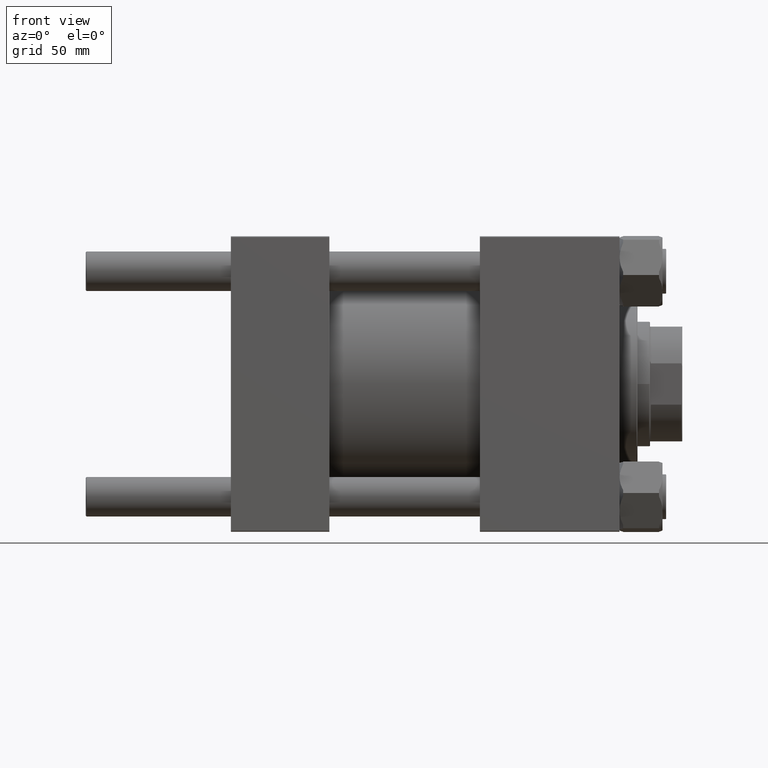
[diagram: clean part render]
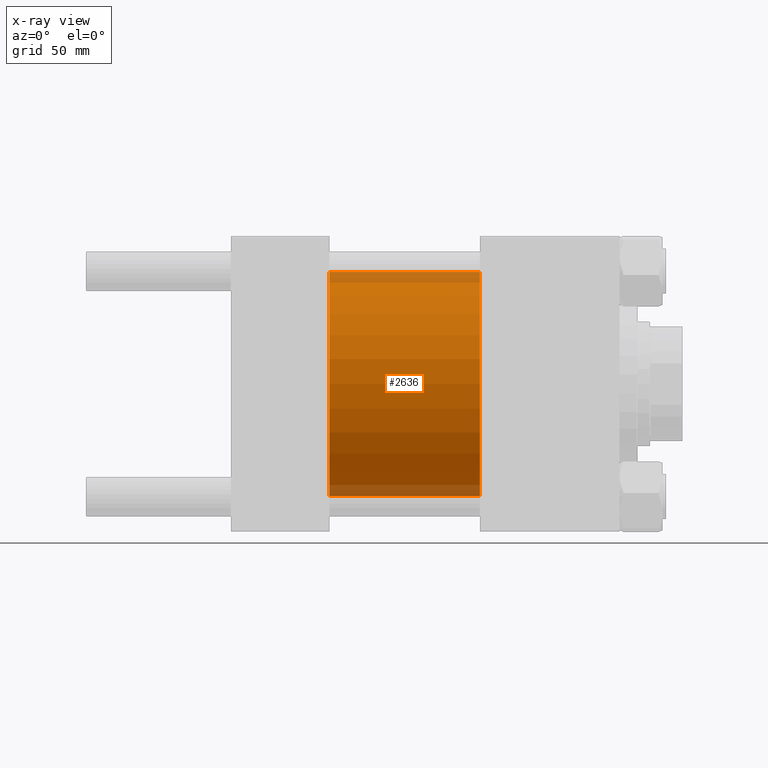
[diagram: x-ray — body ghosted, one internal face saturated and labeled with its STEP entity id]
A machine part, front view, then the same camera in x-ray: the body is ghosted and one INTERNAL B-rep face — a face not visible from any outside direction — is saturated and labeled: STEP entity #2636.
In plain terms, the highlighted cylindrical surface (partial cylindrical patch) has radius 62.5 mm, axis along (-1, -0, -0).
Its self-contained STEP definition (entity closure, byte-faithful):
#1 = EDGE_CURVE ( 'NONE', #36384, #22190, #30120, .T. ) ;
#1325 = DIRECTION ( 'NONE',  ( 1.000000000000000000, 0.000000000000000000, 0.000000000000000000 ) ) ;
#1931 = FACE_OUTER_BOUND ( 'NONE', #16724, .T. ) ;
#2103 = DIRECTION ( 'NONE',  ( -1.000000000000000000, -0.000000000000000000, -0.000000000000000000 ) ) ;
#2636 = ADVANCED_FACE ( 'NONE', ( #1931 ), #17741, .F. ) ;
#2684 = DIRECTION ( 'NONE',  ( 0.000000000000000000, 0.000000000000000000, 1.000000000000000000 ) ) ;
#2759 = ORIENTED_EDGE ( 'NONE', *, *, #19575, .T. ) ;
#2903 = AXIS2_PLACEMENT_3D ( 'NONE', #22132, #37691, #37945 ) ;
#3458 = ORIENTED_EDGE ( 'NONE', *, *, #14800, .T. ) ;
#6989 = CIRCLE ( 'NONE', #2903, 62.50000000000000000 ) ;
#8463 = VECTOR ( 'NONE', #25506, 1000.000000000000000 ) ;
#9536 = VERTEX_POINT ( 'NONE', #19455 ) ;
#14013 = LINE ( 'NONE', #17597, #8463 ) ;
#14237 = CARTESIAN_POINT ( 'NONE',  ( 55.00000000000000000, 0.000000000000000000, 62.50000000000000000 ) ) ;
#14421 = DIRECTION ( 'NONE',  ( -1.000000000000000000, -0.000000000000000000, -0.000000000000000000 ) ) ;
#14800 = EDGE_CURVE ( 'NONE', #35255, #22190, #14013, .T. ) ;
#15107 = CARTESIAN_POINT ( 'NONE',  ( 139.0000000000000000, 7.654042494670956226E-15, -62.50000000000000000 ) ) ;
#16724 = EDGE_LOOP ( 'NONE', ( #2759, #3458, #33988, #25657 ) ) ;
#17597 = CARTESIAN_POINT ( 'NONE',  ( 139.0000000000000000, 7.654042494670956226E-15, -62.50000000000000000 ) ) ;
#17741 = CYLINDRICAL_SURFACE ( 'NONE', #27742, 62.50000000000000000 ) ;
#19455 = CARTESIAN_POINT ( 'NONE',  ( 139.0000000000000000, 0.000000000000000000, 62.50000000000000000 ) ) ;
#19575 = EDGE_CURVE ( 'NONE', #9536, #35255, #6989, .T. ) ;
#20458 = CARTESIAN_POINT ( 'NONE',  ( 55.00000000000000000, 0.000000000000000000, 0.000000000000000000 ) ) ;
#21490 = LINE ( 'NONE', #37054, #22314 ) ;
#22057 = CARTESIAN_POINT ( 'NONE',  ( 55.00000000000000000, 7.654042494670956226E-15, -62.50000000000000000 ) ) ;
#22132 = CARTESIAN_POINT ( 'NONE',  ( 139.0000000000000000, 0.000000000000000000, 0.000000000000000000 ) ) ;
#22190 = VERTEX_POINT ( 'NONE', #22057 ) ;
#22314 = VECTOR ( 'NONE', #2103, 1000.000000000000000 ) ;
#25506 = DIRECTION ( 'NONE',  ( -1.000000000000000000, -0.000000000000000000, -0.000000000000000000 ) ) ;
#25657 = ORIENTED_EDGE ( 'NONE', *, *, #43206, .F. ) ;
#27742 = AXIS2_PLACEMENT_3D ( 'NONE', #45309, #14421, #2684 ) ;
#30120 = CIRCLE ( 'NONE', #48887, 62.50000000000000000 ) ;
#32186 = DIRECTION ( 'NONE',  ( 0.000000000000000000, 0.000000000000000000, -1.000000000000000000 ) ) ;
#33988 = ORIENTED_EDGE ( 'NONE', *, *, #1, .F. ) ;
#35255 = VERTEX_POINT ( 'NONE', #15107 ) ;
#36384 = VERTEX_POINT ( 'NONE', #14237 ) ;
#37054 = CARTESIAN_POINT ( 'NONE',  ( 139.0000000000000000, 0.000000000000000000, 62.50000000000000000 ) ) ;
#37691 = DIRECTION ( 'NONE',  ( 1.000000000000000000, 0.000000000000000000, 0.000000000000000000 ) ) ;
#37945 = DIRECTION ( 'NONE',  ( 0.000000000000000000, 0.000000000000000000, -1.000000000000000000 ) ) ;
#43206 = EDGE_CURVE ( 'NONE', #9536, #36384, #21490, .T. ) ;
#45309 = CARTESIAN_POINT ( 'NONE',  ( 139.0000000000000000, 0.000000000000000000, 0.000000000000000000 ) ) ;
#48887 = AXIS2_PLACEMENT_3D ( 'NONE', #20458, #1325, #32186 ) ;